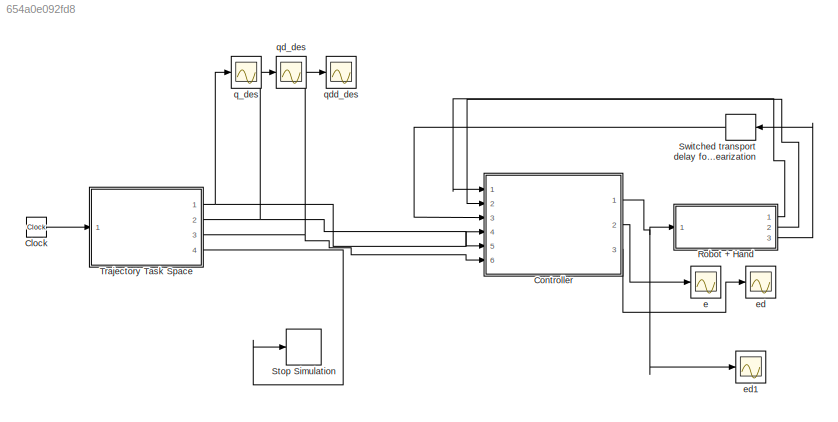
MODEL slx_654a0e092fd8
KIND model
BLOCK [Clock] Clock
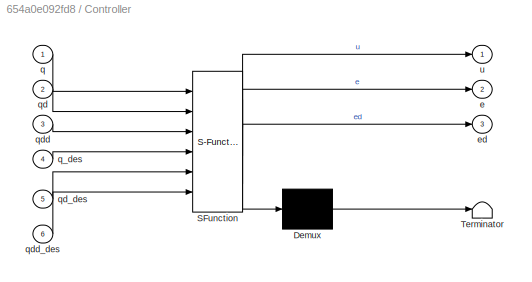
BLOCK [SubSystem] Controller
  ErrorFcn = Stateflow.Translate.translate
  PermitHierarchicalResolution = ExplicitOnly
  Ports = [6, 3]
  RequestExecContextInheritance = off
  SFBlockType = MATLAB Function
  TreatAsAtomicUnit = on
BLOCK [Demux] Controller/ Demux 
  Outputs = 1
  Ports = [1, 1]
BLOCK [S-Function] Controller/ SFunction 
  EnableBusSupport = on
  FunctionName = sf_sfun
  PortCounts = [6 4]
  Ports = [6, 4]
  Tag = Stateflow S-Function MotionControl 2
BLOCK [Terminator] Controller/ Terminator 
BLOCK [Outport] Controller/e
  IconDisplay = Port number
  Port = 2
BLOCK [Outport] Controller/ed
  IconDisplay = Port number
  Port = 3
BLOCK [Inport] Controller/q
  IconDisplay = Port number
BLOCK [Inport] Controller/q_des
  IconDisplay = Port number
  Port = 4
BLOCK [Inport] Controller/qd
  IconDisplay = Port number
  Port = 2
BLOCK [Inport] Controller/qd_des
  IconDisplay = Port number
  Port = 5
BLOCK [Inport] Controller/qdd
  IconDisplay = Port number
  Port = 3
BLOCK [Inport] Controller/qdd_des
  IconDisplay = Port number
  Port = 6
BLOCK [Outport] Controller/u
  IconDisplay = Port number
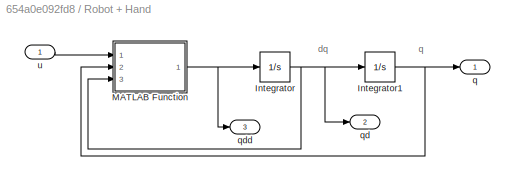
BLOCK [SubSystem] Robot + Hand 
  Ports = [1, 3]
  RequestExecContextInheritance = off
BLOCK [Integrator] Robot + Hand /Integrator
  InitialCondition = [0.0;0.0;0.0]
  Ports = [1, 1]
BLOCK [Integrator] Robot + Hand /Integrator1
  InitialCondition = [0.0;0.0;0.0]
  Ports = [1, 1]
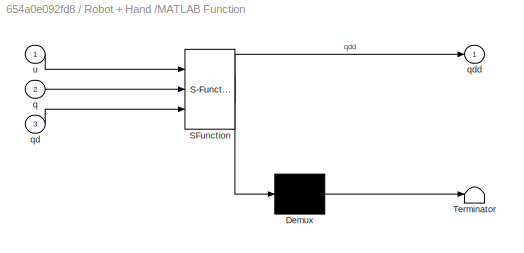
BLOCK [SubSystem] Robot + Hand /MATLAB Function
  ErrorFcn = Stateflow.Translate.translate
  PermitHierarchicalResolution = ExplicitOnly
  Ports = [3, 1]
  RequestExecContextInheritance = off
  SFBlockType = MATLAB Function
  TreatAsAtomicUnit = on
BLOCK [Demux] Robot + Hand /MATLAB Function/ Demux 
  Outputs = 1
  Ports = [1, 1]
BLOCK [S-Function] Robot + Hand /MATLAB Function/ SFunction 
  EnableBusSupport = on
  FunctionName = sf_sfun
  PortCounts = [3 2]
  Ports = [3, 2]
  Tag = Stateflow S-Function MotionControl 1
BLOCK [Terminator] Robot + Hand /MATLAB Function/ Terminator 
BLOCK [Inport] Robot + Hand /MATLAB Function/q
  IconDisplay = Port number
  Port = 2
BLOCK [Inport] Robot + Hand /MATLAB Function/qd
  IconDisplay = Port number
  Port = 3
BLOCK [Outport] Robot + Hand /MATLAB Function/qdd
  IconDisplay = Port number
BLOCK [Inport] Robot + Hand /MATLAB Function/u
  IconDisplay = Port number
BLOCK [Outport] Robot + Hand /q
  IconDisplay = Port number
BLOCK [Outport] Robot + Hand /qd
  IconDisplay = Port number
  Port = 2
BLOCK [Outport] Robot + Hand /qdd
  IconDisplay = Port number
  Port = 3
BLOCK [Inport] Robot + Hand /u 
  IconDisplay = Port number
BLOCK [Stop] Stop Simulation
BLOCK [TransportDelay] Switched transport delay for linearization
  DelayTime = 0.001
  PadeOrder = 2
  Ports = [1, 1]
  TransDelayFeedthrough = on
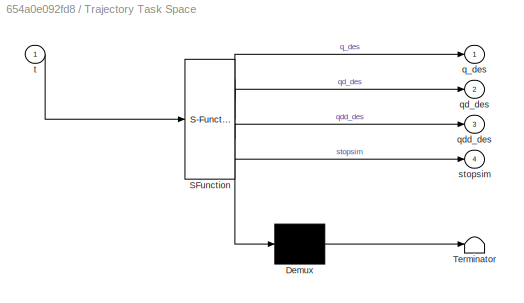
BLOCK [SubSystem] Trajectory Task Space
  ErrorFcn = Stateflow.Translate.translate
  PermitHierarchicalResolution = ExplicitOnly
  Ports = [1, 4]
  RequestExecContextInheritance = off
  SFBlockType = MATLAB Function
  TreatAsAtomicUnit = on
BLOCK [Demux] Trajectory Task Space/ Demux 
  Outputs = 1
  Ports = [1, 1]
BLOCK [S-Function] Trajectory Task Space/ SFunction 
  EnableBusSupport = on
  FunctionName = sf_sfun
  PortCounts = [1 5]
  Ports = [1, 5]
  Tag = Stateflow S-Function MotionControl 4
BLOCK [Terminator] Trajectory Task Space/ Terminator 
BLOCK [Outport] Trajectory Task Space/q_des
  IconDisplay = Port number
BLOCK [Outport] Trajectory Task Space/qd_des
  IconDisplay = Port number
  Port = 2
BLOCK [Outport] Trajectory Task Space/qdd_des
  IconDisplay = Port number
  Port = 3
BLOCK [Outport] Trajectory Task Space/stopsim
  IconDisplay = Port number
  Port = 4
BLOCK [Inport] Trajectory Task Space/t
  IconDisplay = Port number
BLOCK [Scope] e
  Floating = off
  LimitDataPoints = off
  NumInputPorts = 1
  Ports = [1]
  SaveName = ScopeData3
  ShowLegends = off
  YMax = 0.0525
  YMin = -0.0025
  ZoomMode = yonly
BLOCK [Scope] ed
  Floating = off
  LimitDataPoints = off
  NumInputPorts = 1
  Ports = [1]
  SaveName = ScopeData4
  ShowLegends = off
  TimeRange = 40
  YMax = 1.1
  YMin = -0.05
  ZoomMode = xonly
BLOCK [Scope] ed1
  Floating = off
  LimitDataPoints = off
  NumInputPorts = 1
  Ports = [1]
  SaveName = ScopeData5
  ShowLegends = off
  YMax = 0.00425
  YMin = 0.00025
  ZoomMode = yonly
BLOCK [Scope] q_des
  Floating = off
  LimitDataPoints = off
  NumInputPorts = 1
  Ports = [1]
  ShowLegends = off
  YMax = 0.00425
  YMin = 0.00025
  ZoomMode = xonly
BLOCK [Scope] qd_des
  Floating = off
  LimitDataPoints = off
  NumInputPorts = 1
  Ports = [1]
  SaveName = ScopeData1
  ShowLegends = off
  ZoomMode = xonly
BLOCK [Scope] qdd_des
  Floating = off
  LimitDataPoints = off
  NumInputPorts = 1
  Ports = [1]
  SaveName = ScopeData2
  ShowLegends = off
  ZoomMode = xonly
ANNOTATION Robot + Hand : dq
ANNOTATION Robot + Hand : q
LINE Clock:1 -> Trajectory Task Space:1
NET Controller:1 -> Robot + Hand :1, ed1:1
LINE Controller:2 -> e:1
LINE Controller:3 -> ed:1
NET Robot + Hand /Integrator1:1 -> Robot + Hand /MATLAB Function:2, Robot + Hand /q:1
NET Robot + Hand /Integrator:1 -> Robot + Hand /Integrator1:1, Robot + Hand /MATLAB Function:3, Robot + Hand /qd:1
NET Robot + Hand /MATLAB Function:1 -> Robot + Hand /Integrator:1, Robot + Hand /qdd:1
LINE Robot + Hand /u :1 -> Robot + Hand /MATLAB Function:1
LINE Robot + Hand :1 -> Controller:1
LINE Robot + Hand :2 -> Controller:2
LINE Robot + Hand :3 -> Switched transport delay for linearization:1
LINE Switched transport delay for linearization:1 -> Controller:3
NET Trajectory Task Space:1 -> Controller:4, q_des:1
NET Trajectory Task Space:2 -> Controller:5, qd_des:1
NET Trajectory Task Space:3 -> Controller:6, qdd_des:1
LINE Trajectory Task Space:4 -> Stop Simulation:1
note: NET lines group one-source signal fan-out (src -> all destinations, sorted); 1:1 wires keep LINE
